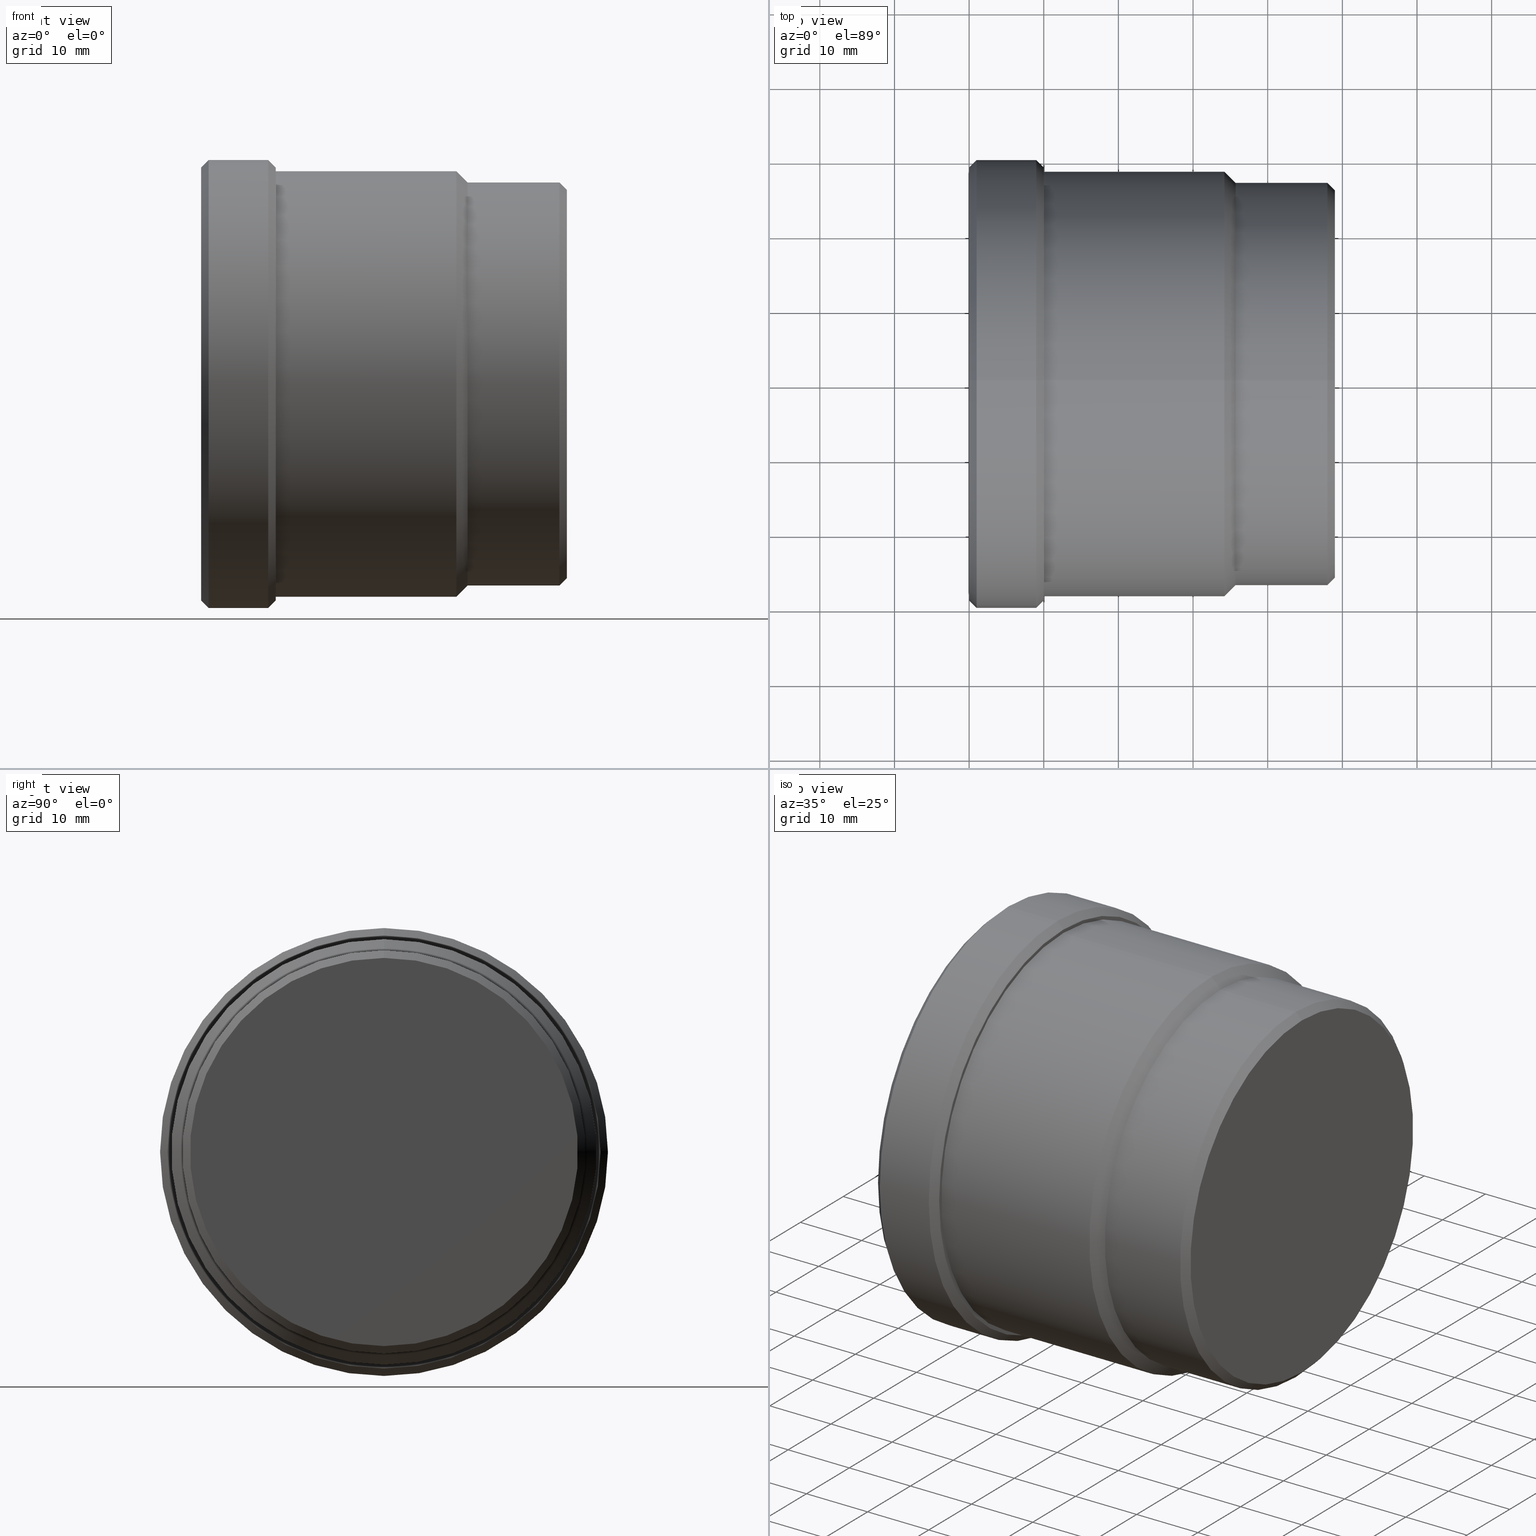
[diagram: canonical four-view strip — front | top / right | iso, engineering-drawing reading convention]
A machine part, canonical four-view strip (front | top / right | iso — engineering-drawing reading convention). The complete STEP part file that produces these views, byte-faithful:
ISO-10303-21;
HEADER;
FILE_DESCRIPTION (( 'STEP AP214' ),
    '1' );
FILE_NAME ('691009-1.STEP',
    '2025-06-18T07:45:58',
    ( '' ),
    ( '' ),
    'SwSTEP 2.0',
    'SolidWorks 2020',
    '' );
FILE_SCHEMA (( 'AUTOMOTIVE_DESIGN' ));
ENDSEC;

DATA;
#1 = DIRECTION ( 'NONE',  ( 0.000000000000000000, 0.000000000000000000, 1.000000000000000000 ) ) ;
#2 = EDGE_LOOP ( 'NONE', ( #45, #367, #122, #79 ) ) ;
#3 = ADVANCED_FACE ( 'NONE', ( #464, #392 ), #241, .F. ) ;
#4 = CARTESIAN_POINT ( 'NONE',  ( 0.000000000000000000, 0.000000000000000000, 0.000000000000000000 ) ) ;
#5 = DIRECTION ( 'NONE',  ( -1.000000000000000000, -0.000000000000000000, -0.000000000000000000 ) ) ;
#6 = AXIS2_PLACEMENT_3D ( 'NONE', #470, #50, #146 ) ;
#7 = CARTESIAN_POINT ( 'NONE',  ( -255.8344310284800258, 0.000000000000000000, 0.000000000000000000 ) ) ;
#8 = EDGE_LOOP ( 'NONE', ( #404, #63, #395, #17 ) ) ;
#9 = DIRECTION ( 'NONE',  ( -1.000000000000000000, -0.000000000000000000, -0.000000000000000000 ) ) ;
#10 = DIRECTION ( 'NONE',  ( 1.000000000000000000, 0.000000000000000000, 0.000000000000000000 ) ) ;
#11 = ADVANCED_FACE ( 'NONE', ( #139 ), #387, .T. ) ;
#12 = EDGE_LOOP ( 'NONE', ( #61, #316 ) ) ;
#13 = FACE_OUTER_BOUND ( 'NONE', #346, .T. ) ;
#14 = ORIENTED_EDGE ( 'NONE', *, *, #199, .F. ) ;
#15 = CIRCLE ( 'NONE', #273, 29.00000000000002132 ) ;
#16 = AXIS2_PLACEMENT_3D ( 'NONE', #378, #339, #145 ) ;
#17 = ORIENTED_EDGE ( 'NONE', *, *, #43, .F. ) ;
#18 = ORIENTED_EDGE ( 'NONE', *, *, #334, .F. ) ;
#19 = CARTESIAN_POINT ( 'NONE',  ( 34.20000000000000995, 0.000000000000000000, 0.000000000000000000 ) ) ;
#20 = CARTESIAN_POINT ( 'NONE',  ( 34.20000000000000995, 0.000000000000000000, 0.000000000000000000 ) ) ;
#21 = ADVANCED_FACE ( 'NONE', ( #311 ), #279, .T. ) ;
#22 = ORIENTED_EDGE ( 'NONE', *, *, #118, .F. ) ;
#23 =( NAMED_UNIT ( * ) SI_UNIT ( $, .STERADIAN. ) SOLID_ANGLE_UNIT ( ) );
#24 = LINE ( 'NONE', #27, #195 ) ;
#25 = VECTOR ( 'NONE', #217, 1000.000000000000000 ) ;
#26 = DIRECTION ( 'NONE',  ( 1.000000000000000000, 0.000000000000000000, 0.000000000000000000 ) ) ;
#27 = CARTESIAN_POINT ( 'NONE',  ( 9.000000000000063949, 3.673940397442059178E-15, -30.00000000000000000 ) ) ;
#28 = CARTESIAN_POINT ( 'NONE',  ( 0.000000000000000000, 3.612708057484693181E-15, 29.00000000000002132 ) ) ;
#29 = ADVANCED_FACE ( 'NONE', ( #352 ), #264, .T. ) ;
#30 = CARTESIAN_POINT ( 'NONE',  ( 9.000000000000063949, 0.000000000000000000, 0.000000000000000000 ) ) ;
#31 = EDGE_LOOP ( 'NONE', ( #461, #402, #275, #114 ) ) ;
#32 = CIRCLE ( 'NONE', #16, 29.00000000000005329 ) ;
#33 = COLOUR_RGB ( '',1.000000000000000000, 1.000000000000000000, 1.000000000000000000 ) ;
#34 = DIRECTION ( 'NONE',  ( -0.7071067811865352493, 0.000000000000000000, 0.7071067811865597852 ) ) ;
#35 = ADVANCED_FACE ( 'NONE', ( #359 ), #36, .F. ) ;
#36 = PLANE ( 'NONE',  #212 ) ;
#37 = ORIENTED_EDGE ( 'NONE', *, *, #390, .T. ) ;
#38 = CARTESIAN_POINT ( 'NONE',  ( 10.00000000000000888, 0.000000000000000000, 0.000000000000000000 ) ) ;
#39 = DIRECTION ( 'NONE',  ( 0.000000000000000000, 0.000000000000000000, 1.000000000000000000 ) ) ;
#40 = VECTOR ( 'NONE', #44, 1000.000000000000000 ) ;
#41 = MECHANICAL_DESIGN_GEOMETRIC_PRESENTATION_REPRESENTATION (  '', ( #462 ), #204 ) ;
#42 = DIRECTION ( 'NONE',  ( 0.000000000000000000, 0.000000000000000000, 1.000000000000000000 ) ) ;
#43 = EDGE_CURVE ( 'NONE', #374, #148, #391, .T. ) ;
#44 = DIRECTION ( 'NONE',  ( -1.000000000000000000, -0.000000000000000000, -0.000000000000000000 ) ) ;
#45 = ORIENTED_EDGE ( 'NONE', *, *, #439, .T. ) ;
#46 = DIRECTION ( 'NONE',  ( 1.000000000000000000, 0.000000000000000000, 0.000000000000000000 ) ) ;
#47 = VERTEX_POINT ( 'NONE', #459 ) ;
#48 = EDGE_LOOP ( 'NONE', ( #125, #276, #223, #457 ) ) ;
#49 = LINE ( 'NONE', #149, #363 ) ;
#50 = DIRECTION ( 'NONE',  ( 1.000000000000000000, 0.000000000000000000, 0.000000000000000000 ) ) ;
#51 = CARTESIAN_POINT ( 'NONE',  ( -255.8344310284800258, 0.000000000000000000, 0.000000000000000000 ) ) ;
#52 = EDGE_CURVE ( 'NONE', #424, #452, #155, .T. ) ;
#53 = ORIENTED_EDGE ( 'NONE', *, *, #460, .F. ) ;
#54 = ORIENTED_EDGE ( 'NONE', *, *, #199, .T. ) ;
#55 = VERTEX_POINT ( 'NONE', #315 ) ;
#56 = DIRECTION ( 'NONE',  ( 0.000000000000000000, 0.000000000000000000, 1.000000000000000000 ) ) ;
#57 = LINE ( 'NONE', #229, #350 ) ;
#58 = CLOSED_SHELL ( 'NONE', ( #67, #433, #29, #91, #124, #192, #107, #277, #11, #3, #410, #147, #35, #224, #425, #87, #21 ) ) ;
#59 = AXIS2_PLACEMENT_3D ( 'NONE', #51, #83, #226 ) ;
#60 = VERTEX_POINT ( 'NONE', #313 ) ;
#61 = ORIENTED_EDGE ( 'NONE', *, *, #383, .T. ) ;
#62 = PRODUCT_CONTEXT ( 'NONE', #440, 'mechanical' ) ;
#63 = ORIENTED_EDGE ( 'NONE', *, *, #414, .T. ) ;
#64 = FILL_AREA_STYLE ('',( #456 ) ) ;
#65 = AXIS2_PLACEMENT_3D ( 'NONE', #309, #384, #207 ) ;
#66 = AXIS2_PLACEMENT_3D ( 'NONE', #386, #382, #310 ) ;
#67 = ADVANCED_FACE ( 'NONE', ( #283 ), #285, .T. ) ;
#68 = CARTESIAN_POINT ( 'NONE',  ( 0.000000000000000000, 0.000000000000000000, 0.000000000000000000 ) ) ;
#69 = DIRECTION ( 'NONE',  ( 1.000000000000000000, 0.000000000000000000, 0.000000000000000000 ) ) ;
#70 = DIRECTION ( 'NONE',  ( -1.000000000000000000, -0.000000000000000000, -0.000000000000000000 ) ) ;
#71 = DIRECTION ( 'NONE',  ( 0.000000000000000000, 0.000000000000000000, 1.000000000000000000 ) ) ;
#72 = CIRCLE ( 'NONE', #243, 28.50000000000000000 ) ;
#73 = EDGE_CURVE ( 'NONE', #452, #47, #281, .T. ) ;
#74 = CARTESIAN_POINT ( 'NONE',  ( 10.00000000000000000, 30.00000000000000000, 0.000000000000000000 ) ) ;
#75 = VERTEX_POINT ( 'NONE', #28 ) ;
#76 = LINE ( 'NONE', #365, #40 ) ;
#77 = PRODUCT_DEFINITION_CONTEXT ( 'detailed design', #466, 'design' ) ;
#78 = CARTESIAN_POINT ( 'NONE',  ( -255.8344310284800258, 0.000000000000000000, 28.50000000000000000 ) ) ;
#79 = ORIENTED_EDGE ( 'NONE', *, *, #393, .F. ) ;
#80 = AXIS2_PLACEMENT_3D ( 'NONE', #19, #160, #332 ) ;
#81 = DIRECTION ( 'NONE',  ( -1.000000000000000000, -0.000000000000000000, -0.000000000000000000 ) ) ;
#82 = CARTESIAN_POINT ( 'NONE',  ( 10.00000000000000000, 0.000000000000000000, 29.00000000000005329 ) ) ;
#83 = DIRECTION ( 'NONE',  ( -1.000000000000000000, -0.000000000000000000, -0.000000000000000000 ) ) ;
#84 = DIRECTION ( 'NONE',  ( -1.000000000000000000, -0.000000000000000000, -0.000000000000000000 ) ) ;
#85 = AXIS2_PLACEMENT_3D ( 'NONE', #294, #182, #288 ) ;
#86 = FACE_OUTER_BOUND ( 'NONE', #265, .T. ) ;
#87 = ADVANCED_FACE ( 'NONE', ( #426 ), #166, .T. ) ;
#88 = CARTESIAN_POINT ( 'NONE',  ( 47.99999999999998579, 0.000000000000000000, 0.000000000000000000 ) ) ;
#89 = LINE ( 'NONE', #416, #25 ) ;
#90 = ORIENTED_EDGE ( 'NONE', *, *, #251, .F. ) ;
#91 = ADVANCED_FACE ( 'NONE', ( #467 ), #356, .T. ) ;
#92 = VERTEX_POINT ( 'NONE', #137 ) ;
#93 = DIRECTION ( 'NONE',  ( -0.7071067811865439090, 8.659560562354978464E-17, -0.7071067811865512365 ) ) ;
#94 = ORIENTED_EDGE ( 'NONE', *, *, #455, .F. ) ;
#95 = CARTESIAN_POINT ( 'NONE',  ( 35.70000000000000995, 3.306546357697854128E-15, -27.00000000000000355 ) ) ;
#96 = DIRECTION ( 'NONE',  ( -1.000000000000000000, -0.000000000000000000, -0.000000000000000000 ) ) ;
#97 = VECTOR ( 'NONE', #34, 1000.000000000000000 ) ;
#98 = DIRECTION ( 'NONE',  ( 0.000000000000000000, 0.000000000000000000, 1.000000000000000000 ) ) ;
#99 = DIRECTION ( 'NONE',  ( -1.000000000000000000, -0.000000000000000000, -0.000000000000000000 ) ) ;
#100 = DIRECTION ( 'NONE',  ( 0.000000000000000000, 0.000000000000000000, -1.000000000000000000 ) ) ;
#101 = SURFACE_STYLE_USAGE ( .BOTH. , #427 ) ;
#102 = ORIENTED_EDGE ( 'NONE', *, *, #383, .F. ) ;
#103 = DIRECTION ( 'NONE',  ( -0.000000000000000000, 0.000000000000000000, 1.000000000000000000 ) ) ;
#104 = AXIS2_PLACEMENT_3D ( 'NONE', #333, #10, #42 ) ;
#105 = ORIENTED_EDGE ( 'NONE', *, *, #230, .F. ) ;
#106 = CARTESIAN_POINT ( 'NONE',  ( 34.20000000000000995, 0.000000000000000000, 0.000000000000000000 ) ) ;
#107 = ADVANCED_FACE ( 'NONE', ( #132 ), #355, .T. ) ;
#108 = DIRECTION ( 'NONE',  ( -1.000000000000000000, -0.000000000000000000, -0.000000000000000000 ) ) ;
#109 = ORIENTED_EDGE ( 'NONE', *, *, #308, .T. ) ;
#110 = FACE_OUTER_BOUND ( 'NONE', #209, .T. ) ;
#111 = AXIS2_PLACEMENT_3D ( 'NONE', #38, #9, #328 ) ;
#112 = AXIS2_PLACEMENT_3D ( 'NONE', #237, #193, #26 ) ;
#113 = DIRECTION ( 'NONE',  ( 0.000000000000000000, 0.000000000000000000, 1.000000000000000000 ) ) ;
#114 = ORIENTED_EDGE ( 'NONE', *, *, #141, .T. ) ;
#115 = FACE_OUTER_BOUND ( 'NONE', #314, .T. ) ;
#116 = DIRECTION ( 'NONE',  ( -1.000000000000000000, -0.000000000000000000, -0.000000000000000000 ) ) ;
#117 = ORIENTED_EDGE ( 'NONE', *, *, #141, .F. ) ;
#118 = EDGE_CURVE ( 'NONE', #55, #468, #219, .T. ) ;
#119 = CARTESIAN_POINT ( 'NONE',  ( 34.20000000000000995, 0.000000000000000000, 28.50000000000000000 ) ) ;
#120 = DIRECTION ( 'NONE',  ( -1.000000000000000000, -0.000000000000000000, -0.000000000000000000 ) ) ;
#121 = CIRCLE ( 'NONE', #299, 25.99999999999995381 ) ;
#122 = ORIENTED_EDGE ( 'NONE', *, *, #52, .F. ) ;
#123 = CARTESIAN_POINT ( 'NONE',  ( 0.000000000000000000, 0.000000000000000000, -29.00000000000002132 ) ) ;
#124 = ADVANCED_FACE ( 'NONE', ( #401 ), #188, .T. ) ;
#125 = ORIENTED_EDGE ( 'NONE', *, *, #73, .F. ) ;
#126 = CARTESIAN_POINT ( 'NONE',  ( 9.000000000000063949, 0.000000000000000000, 30.00000000000000000 ) ) ;
#127 = AXIS2_PLACEMENT_3D ( 'NONE', #330, #268, #187 ) ;
#128 =( LENGTH_UNIT ( ) NAMED_UNIT ( * ) SI_UNIT ( .MILLI., .METRE. ) );
#129 = ORIENTED_EDGE ( 'NONE', *, *, #308, .F. ) ;
#130 = APPLICATION_PROTOCOL_DEFINITION ( 'draft international standard', 'automotive_design', 1998, #466 ) ;
#131 = EDGE_CURVE ( 'NONE', #184, #300, #329, .T. ) ;
#132 = FACE_OUTER_BOUND ( 'NONE', #409, .T. ) ;
#133 = CIRCLE ( 'NONE', #266, 28.50000000000000000 ) ;
#134 = DIRECTION ( 'NONE',  ( -0.000000000000000000, 0.000000000000000000, 1.000000000000000000 ) ) ;
#135 = EDGE_CURVE ( 'NONE', #248, #60, #398, .T. ) ;
#136 = DIRECTION ( 'NONE',  ( -1.000000000000000000, 0.000000000000000000, -0.000000000000000000 ) ) ;
#137 = CARTESIAN_POINT ( 'NONE',  ( 10.00000000000000888, 3.490243377569956456E-15, -28.50000000000000000 ) ) ;
#138 = CIRCLE ( 'NONE', #104, 25.99999999999995381 ) ;
#139 = FACE_OUTER_BOUND ( 'NONE', #31, .T. ) ;
#140 = CONICAL_SURFACE ( 'NONE', #342, 30.00000000000000000, 0.7853981633974533860 ) ;
#141 = EDGE_CURVE ( 'NONE', #60, #248, #340, .T. ) ;
#142 = DIRECTION ( 'NONE',  ( -1.000000000000000000, -0.000000000000000000, -0.000000000000000000 ) ) ;
#143 = DIRECTION ( 'NONE',  ( 0.000000000000000000, 0.000000000000000000, -1.000000000000000000 ) ) ;
#144 = CARTESIAN_POINT ( 'NONE',  ( 47.99999999999998579, 0.000000000000000000, 27.00000000000000355 ) ) ;
#145 = DIRECTION ( 'NONE',  ( 0.000000000000000000, 0.000000000000000000, 1.000000000000000000 ) ) ;
#146 = DIRECTION ( 'NONE',  ( 0.000000000000000000, 0.000000000000000000, -1.000000000000000000 ) ) ;
#147 = ADVANCED_FACE ( 'NONE', ( #258 ), #396, .T. ) ;
#148 = VERTEX_POINT ( 'NONE', #144 ) ;
#149 = CARTESIAN_POINT ( 'NONE',  ( 47.99999999999998579, 3.306546357697854128E-15, -27.00000000000000355 ) ) ;
#150 = ORIENTED_EDGE ( 'NONE', *, *, #357, .F. ) ;
#151 = ORIENTED_EDGE ( 'NONE', *, *, #135, .T. ) ;
#152 = ORIENTED_EDGE ( 'NONE', *, *, #168, .T. ) ;
#153 = CARTESIAN_POINT ( 'NONE',  ( 9.000000000000063949, 0.000000000000000000, 0.000000000000000000 ) ) ;
#154 = ORIENTED_EDGE ( 'NONE', *, *, #393, .T. ) ;
#155 = CIRCLE ( 'NONE', #312, 27.00000000000000355 ) ;
#156 = DIRECTION ( 'NONE',  ( 0.000000000000000000, 0.000000000000000000, -1.000000000000000000 ) ) ;
#157 = VECTOR ( 'NONE', #411, 1000.000000000000000 ) ;
#158 = EDGE_CURVE ( 'NONE', #374, #257, #138, .T. ) ;
#159 = EDGE_LOOP ( 'NONE', ( #408, #236, #129, #232 ) ) ;
#160 = DIRECTION ( 'NONE',  ( -1.000000000000000000, -0.000000000000000000, -0.000000000000000000 ) ) ;
#161 = PRODUCT_DEFINITION ( 'δ֪', '', #306, #77 ) ;
#162 = DIRECTION ( 'NONE',  ( 0.000000000000000000, 0.000000000000000000, 1.000000000000000000 ) ) ;
#163 = ORIENTED_EDGE ( 'NONE', *, *, #158, .F. ) ;
#164 = APPLICATION_PROTOCOL_DEFINITION ( 'draft international standard', 'automotive_design', 1998, #440 ) ;
#165 = AXIS2_PLACEMENT_3D ( 'NONE', #428, #245, #71 ) ;
#166 = CONICAL_SURFACE ( 'NONE', #291, 30.00000000000000000, 0.7853981633974533860 ) ;
#167 = ORIENTED_EDGE ( 'NONE', *, *, #208, .F. ) ;
#168 = EDGE_CURVE ( 'NONE', #75, #326, #15, .T. ) ;
#169 = FILL_AREA_STYLE ('',( #274 ) ) ;
#170 = DIRECTION ( 'NONE',  ( -1.000000000000000000, -0.000000000000000000, -0.000000000000000000 ) ) ;
#171 = SURFACE_STYLE_FILL_AREA ( #64 ) ;
#172 = AXIS2_PLACEMENT_3D ( 'NONE', #7, #108, #407 ) ;
#173 = CARTESIAN_POINT ( 'NONE',  ( -255.8344310284800258, 0.000000000000000000, 0.000000000000000000 ) ) ;
#174 = MECHANICAL_DESIGN_GEOMETRIC_PRESENTATION_REPRESENTATION (  '', ( #181 ), #370 ) ;
#175 = CARTESIAN_POINT ( 'NONE',  ( 35.70000000000000995, 0.000000000000000000, 0.000000000000000000 ) ) ;
#176 = CARTESIAN_POINT ( 'NONE',  ( 49.00000000000000000, 27.00000000000000000, 0.000000000000000000 ) ) ;
#177 = ORIENTED_EDGE ( 'NONE', *, *, #218, .F. ) ;
#178 = AXIS2_PLACEMENT_3D ( 'NONE', #106, #84, #113 ) ;
#179 = CARTESIAN_POINT ( 'NONE',  ( 49.00000000000000000, 3.245314017740483398E-15, -25.99999999999995381 ) ) ;
#180 = PRESENTATION_LAYER_ASSIGNMENT (  '', '', ( #462 ) ) ;
#181 = STYLED_ITEM ( 'NONE', ( #247 ), #261 ) ;
#182 = DIRECTION ( 'NONE',  ( -1.000000000000000000, -0.000000000000000000, -0.000000000000000000 ) ) ;
#183 = CARTESIAN_POINT ( 'NONE',  ( 47.99999999999998579, 3.306546357697854128E-15, -27.00000000000000355 ) ) ;
#184 = VERTEX_POINT ( 'NONE', #82 ) ;
#185 = FACE_OUTER_BOUND ( 'NONE', #298, .T. ) ;
#186 = CIRCLE ( 'NONE', #220, 30.00000000000000000 ) ;
#187 = DIRECTION ( 'NONE',  ( 0.000000000000000000, 0.000000000000000000, -1.000000000000000000 ) ) ;
#188 = CYLINDRICAL_SURFACE ( 'NONE', #85, 27.00000000000000355 ) ;
#189 = ORIENTED_EDGE ( 'NONE', *, *, #414, .F. ) ;
#190 = DIRECTION ( 'NONE',  ( 0.000000000000000000, 0.000000000000000000, -1.000000000000000000 ) ) ;
#191 = ORIENTED_EDGE ( 'NONE', *, *, #284, .T. ) ;
#192 = ADVANCED_FACE ( 'NONE', ( #110 ), #438, .T. ) ;
#193 = DIRECTION ( 'NONE',  ( 0.000000000000000000, 0.000000000000000000, 1.000000000000000000 ) ) ;
#194 = CIRCLE ( 'NONE', #437, 29.00000000000002132 ) ;
#195 = VECTOR ( 'NONE', #93, 1000.000000000000000 ) ;
#196 = ORIENTED_EDGE ( 'NONE', *, *, #135, .F. ) ;
#197 = ORIENTED_EDGE ( 'NONE', *, *, #131, .F. ) ;
#198 =( NAMED_UNIT ( * ) SI_UNIT ( $, .STERADIAN. ) SOLID_ANGLE_UNIT ( ) );
#199 = EDGE_CURVE ( 'NONE', #373, #379, #349, .T. ) ;
#200 = ORIENTED_EDGE ( 'NONE', *, *, #334, .T. ) ;
#201 =( LENGTH_UNIT ( ) NAMED_UNIT ( * ) SI_UNIT ( .MILLI., .METRE. ) );
#202 = CARTESIAN_POINT ( 'NONE',  ( 10.00000000000000888, 0.000000000000000000, 28.50000000000000000 ) ) ;
#203 = AXIS2_PLACEMENT_3D ( 'NONE', #214, #358, #98 ) ;
#204 =( GEOMETRIC_REPRESENTATION_CONTEXT ( 3 ) GLOBAL_UNCERTAINTY_ASSIGNED_CONTEXT ( ( #399 ) ) GLOBAL_UNIT_ASSIGNED_CONTEXT ( ( #128, #305, #353 ) ) REPRESENTATION_CONTEXT ( 'NONE', 'WORKASPACE' ) );
#205 = CARTESIAN_POINT ( 'NONE',  ( 34.20000000000000995, 3.490243377569956456E-15, -28.50000000000000000 ) ) ;
#206 = SURFACE_STYLE_USAGE ( .BOTH. , #347 ) ;
#207 = DIRECTION ( 'NONE',  ( 0.000000000000000000, 0.000000000000000000, 1.000000000000000000 ) ) ;
#208 = EDGE_CURVE ( 'NONE', #271, #452, #320, .T. ) ;
#209 = EDGE_LOOP ( 'NONE', ( #109, #191, #102, #22 ) ) ;
#210 = DIRECTION ( 'NONE',  ( 0.000000000000000000, 0.000000000000000000, 1.000000000000000000 ) ) ;
#211 = SURFACE_STYLE_FILL_AREA ( #169 ) ;
#212 = AXIS2_PLACEMENT_3D ( 'NONE', #176, #249, #103 ) ;
#213 = ORIENTED_EDGE ( 'NONE', *, *, #405, .F. ) ;
#214 = CARTESIAN_POINT ( 'NONE',  ( -255.8344310284800258, 0.000000000000000000, 0.000000000000000000 ) ) ;
#215 = ORIENTED_EDGE ( 'NONE', *, *, #448, .T. ) ;
#216 = UNCERTAINTY_MEASURE_WITH_UNIT (LENGTH_MEASURE( 1.000000000000000082E-05 ), #201, 'distance_accuracy_value', 'NONE');
#217 = DIRECTION ( 'NONE',  ( -0.7071067811865439090, 0.000000000000000000, 0.7071067811865512365 ) ) ;
#218 = EDGE_CURVE ( 'NONE', #379, #373, #186, .T. ) ;
#219 = LINE ( 'NONE', #78, #431 ) ;
#220 = AXIS2_PLACEMENT_3D ( 'NONE', #262, #227, #292 ) ;
#221 = AXIS2_PLACEMENT_3D ( 'NONE', #88, #293, #442 ) ;
#222 = CARTESIAN_POINT ( 'NONE',  ( 1.000000000000000888, 3.673940397442059178E-15, -30.00000000000000000 ) ) ;
#223 = ORIENTED_EDGE ( 'NONE', *, *, #418, .T. ) ;
#224 = ADVANCED_FACE ( 'NONE', ( #443 ), #385, .T. ) ;
#225 = DIRECTION ( 'NONE',  ( 0.000000000000000000, 0.000000000000000000, -1.000000000000000000 ) ) ;
#226 = DIRECTION ( 'NONE',  ( 0.000000000000000000, 0.000000000000000000, 1.000000000000000000 ) ) ;
#227 = DIRECTION ( 'NONE',  ( -1.000000000000000000, -0.000000000000000000, -0.000000000000000000 ) ) ;
#228 = AXIS2_PLACEMENT_3D ( 'NONE', #322, #324, #1 ) ;
#229 = CARTESIAN_POINT ( 'NONE',  ( -255.8344310284800258, 0.000000000000000000, 27.00000000000000355 ) ) ;
#230 = EDGE_CURVE ( 'NONE', #92, #468, #72, .T. ) ;
#231 = CARTESIAN_POINT ( 'NONE',  ( 35.70000000000000995, 0.000000000000000000, 27.00000000000000355 ) ) ;
#232 = ORIENTED_EDGE ( 'NONE', *, *, #418, .F. ) ;
#233 = DIRECTION ( 'NONE',  ( 0.000000000000000000, 0.000000000000000000, 1.000000000000000000 ) ) ;
#234 = EDGE_LOOP ( 'NONE', ( #189, #163, #250, #213 ) ) ;
#235 = VECTOR ( 'NONE', #260, 1000.000000000000000 ) ;
#236 = ORIENTED_EDGE ( 'NONE', *, *, #73, .T. ) ;
#237 = CARTESIAN_POINT ( 'NONE',  ( 0.000000000000000000, 0.000000000000000000, 0.000000000000000000 ) ) ;
#238 = PRESENTATION_STYLE_ASSIGNMENT (( #206 ) ) ;
#239 = EDGE_CURVE ( 'NONE', #75, #60, #255, .T. ) ;
#240 =( NAMED_UNIT ( * ) PLANE_ANGLE_UNIT ( ) SI_UNIT ( $, .RADIAN. ) );
#241 = PLANE ( 'NONE',  #454 ) ;
#242 = DIRECTION ( 'NONE',  ( 0.000000000000000000, 0.000000000000000000, 1.000000000000000000 ) ) ;
#243 = AXIS2_PLACEMENT_3D ( 'NONE', #436, #432, #39 ) ;
#244 = AXIS2_PLACEMENT_3D ( 'NONE', #388, #345, #242 ) ;
#245 = DIRECTION ( 'NONE',  ( -1.000000000000000000, -0.000000000000000000, -0.000000000000000000 ) ) ;
#246 = DIRECTION ( 'NONE',  ( 0.000000000000000000, 0.000000000000000000, 1.000000000000000000 ) ) ;
#247 = PRESENTATION_STYLE_ASSIGNMENT (( #101 ) ) ;
#248 = VERTEX_POINT ( 'NONE', #222 ) ;
#249 = DIRECTION ( 'NONE',  ( -1.000000000000000000, 0.000000000000000000, -0.000000000000000000 ) ) ;
#250 = ORIENTED_EDGE ( 'NONE', *, *, #43, .T. ) ;
#251 = EDGE_CURVE ( 'NONE', #373, #60, #76, .T. ) ;
#252 = CARTESIAN_POINT ( 'NONE',  ( 10.00000000000000000, 0.000000000000000000, 0.000000000000000000 ) ) ;
#253 = CARTESIAN_POINT ( 'NONE',  ( -255.8344310284800258, 3.306546357697854128E-15, -27.00000000000000355 ) ) ;
#254 = VECTOR ( 'NONE', #429, 1000.000000000000000 ) ;
#255 = LINE ( 'NONE', #394, #449 ) ;
#256 = CIRCLE ( 'NONE', #111, 28.50000000000000000 ) ;
#257 = VERTEX_POINT ( 'NONE', #179 ) ;
#258 = FACE_OUTER_BOUND ( 'NONE', #375, .T. ) ;
#259 = PRODUCT_RELATED_PRODUCT_CATEGORY ( 'part', '', ( #325 ) ) ;
#260 = DIRECTION ( 'NONE',  ( 0.7071067811865561215, 0.000000000000000000, -0.7071067811865389130 ) ) ;
#261 = ADVANCED_BREP_SHAPE_REPRESENTATION ( '691009-1', ( #445, #112 ), #463 ) ;
#262 = CARTESIAN_POINT ( 'NONE',  ( 9.000000000000063949, 0.000000000000000000, 0.000000000000000000 ) ) ;
#263 = LINE ( 'NONE', #123, #235 ) ;
#264 = CONICAL_SURFACE ( 'NONE', #368, 29.00000000000002132, 0.7853981633974361776 ) ;
#265 = EDGE_LOOP ( 'NONE', ( #446, #341, #200, #117 ) ) ;
#266 = AXIS2_PLACEMENT_3D ( 'NONE', #20, #99, #162 ) ;
#267 = PRESENTATION_LAYER_ASSIGNMENT (  '', '', ( #181 ) ) ;
#268 = DIRECTION ( 'NONE',  ( 1.000000000000000000, 0.000000000000000000, 0.000000000000000000 ) ) ;
#269 = EDGE_LOOP ( 'NONE', ( #335, #348 ) ) ;
#270 = CARTESIAN_POINT ( 'NONE',  ( 49.00000000000000000, 0.000000000000000000, 0.000000000000000000 ) ) ;
#271 = VERTEX_POINT ( 'NONE', #183 ) ;
#272 = CARTESIAN_POINT ( 'NONE',  ( 49.00000000000000000, 0.000000000000000000, 25.99999999999995381 ) ) ;
#273 = AXIS2_PLACEMENT_3D ( 'NONE', #4, #81, #225 ) ;
#274 = FILL_AREA_STYLE_COLOUR ( '', #33 ) ;
#275 = ORIENTED_EDGE ( 'NONE', *, *, #251, .T. ) ;
#276 = ORIENTED_EDGE ( 'NONE', *, *, #460, .T. ) ;
#277 = ADVANCED_FACE ( 'NONE', ( #185 ), #366, .F. ) ;
#278 = DIRECTION ( 'NONE',  ( -1.000000000000000000, -0.000000000000000000, -0.000000000000000000 ) ) ;
#279 = CONICAL_SURFACE ( 'NONE', #165, 27.00000000000000355, 0.7853981633974657095 ) ;
#280 = CIRCLE ( 'NONE', #221, 27.00000000000000355 ) ;
#281 = LINE ( 'NONE', #205, #254 ) ;
#282 = EDGE_LOOP ( 'NONE', ( #441, #465, #196, #18 ) ) ;
#283 = FACE_OUTER_BOUND ( 'NONE', #8, .T. ) ;
#284 = EDGE_CURVE ( 'NONE', #47, #92, #415, .T. ) ;
#285 = CONICAL_SURFACE ( 'NONE', #65, 27.00000000000000355, 0.7853981633974657095 ) ;
#286 = CONICAL_SURFACE ( 'NONE', #422, 29.00000000000002132, 0.7853981633974361776 ) ;
#287 = DIRECTION ( 'NONE',  ( 0.000000000000000000, 0.000000000000000000, 1.000000000000000000 ) ) ;
#288 = DIRECTION ( 'NONE',  ( 0.000000000000000000, 0.000000000000000000, 1.000000000000000000 ) ) ;
#289 = DIRECTION ( 'NONE',  ( -1.000000000000000000, -0.000000000000000000, -0.000000000000000000 ) ) ;
#290 = PRODUCT_DEFINITION_SHAPE ( 'NONE', 'NONE',  #161 ) ;
#291 = AXIS2_PLACEMENT_3D ( 'NONE', #30, #170, #246 ) ;
#292 = DIRECTION ( 'NONE',  ( 0.000000000000000000, 0.000000000000000000, 1.000000000000000000 ) ) ;
#293 = DIRECTION ( 'NONE',  ( -1.000000000000000000, -0.000000000000000000, -0.000000000000000000 ) ) ;
#294 = CARTESIAN_POINT ( 'NONE',  ( -255.8344310284800258, 0.000000000000000000, 0.000000000000000000 ) ) ;
#295 = DIRECTION ( 'NONE',  ( -0.7071067811865352493, 8.659560562355083235E-17, -0.7071067811865597852 ) ) ;
#296 = DIRECTION ( 'NONE',  ( 1.000000000000000000, 0.000000000000000000, 0.000000000000000000 ) ) ;
#297 = AXIS2_PLACEMENT_3D ( 'NONE', #252, #46, #369 ) ;
#298 = EDGE_LOOP ( 'NONE', ( #331, #152 ) ) ;
#299 = AXIS2_PLACEMENT_3D ( 'NONE', #270, #444, #233 ) ;
#300 = VERTEX_POINT ( 'NONE', #453 ) ;
#301 = CARTESIAN_POINT ( 'NONE',  ( -255.8344310284800258, 3.490243377569956456E-15, -28.50000000000000000 ) ) ;
#302 = EDGE_LOOP ( 'NONE', ( #94, #197, #381, #177 ) ) ;
#303 = CARTESIAN_POINT ( 'NONE',  ( -255.8344310284800258, 3.673940397442059178E-15, -30.00000000000000000 ) ) ;
#304 = AXIS2_PLACEMENT_3D ( 'NONE', #364, #434, #143 ) ;
#305 =( NAMED_UNIT ( * ) PLANE_ANGLE_UNIT ( ) SI_UNIT ( $, .RADIAN. ) );
#306 = PRODUCT_DEFINITION_FORMATION_WITH_SPECIFIED_SOURCE ( '�κ�', '', #325, .NOT_KNOWN. ) ;
#307 =( NAMED_UNIT ( * ) PLANE_ANGLE_UNIT ( ) SI_UNIT ( $, .RADIAN. ) );
#308 = EDGE_CURVE ( 'NONE', #55, #47, #421, .T. ) ;
#309 = CARTESIAN_POINT ( 'NONE',  ( 47.99999999999998579, 0.000000000000000000, 0.000000000000000000 ) ) ;
#310 = DIRECTION ( 'NONE',  ( 0.000000000000000000, 0.000000000000000000, 1.000000000000000000 ) ) ;
#311 = FACE_OUTER_BOUND ( 'NONE', #234, .T. ) ;
#312 = AXIS2_PLACEMENT_3D ( 'NONE', #175, #96, #354 ) ;
#313 = CARTESIAN_POINT ( 'NONE',  ( 1.000000000000000888, 0.000000000000000000, 30.00000000000000000 ) ) ;
#314 = EDGE_LOOP ( 'NONE', ( #372, #215, #397, #105 ) ) ;
#315 = CARTESIAN_POINT ( 'NONE',  ( 34.20000000000000995, 0.000000000000000000, 28.50000000000000000 ) ) ;
#316 = ORIENTED_EDGE ( 'NONE', *, *, #230, .T. ) ;
#317 = VECTOR ( 'NONE', #116, 1000.000000000000000 ) ;
#318 = UNCERTAINTY_MEASURE_WITH_UNIT (LENGTH_MEASURE( 1.000000000000000082E-05 ), #458, 'distance_accuracy_value', 'NONE');
#319 = VECTOR ( 'NONE', #351, 1000.000000000000000 ) ;
#320 = LINE ( 'NONE', #253, #317 ) ;
#321 = EDGE_CURVE ( 'NONE', #326, #75, #194, .T. ) ;
#322 = CARTESIAN_POINT ( 'NONE',  ( -255.8344310284800258, 0.000000000000000000, 0.000000000000000000 ) ) ;
#323 = ORIENTED_EDGE ( 'NONE', *, *, #405, .T. ) ;
#324 = DIRECTION ( 'NONE',  ( -1.000000000000000000, -0.000000000000000000, -0.000000000000000000 ) ) ;
#325 = PRODUCT ( '691009-1', '691009-1', '', ( #62 ) ) ;
#326 = VERTEX_POINT ( 'NONE', #451 ) ;
#327 = ORIENTED_EDGE ( 'NONE', *, *, #469, .T. ) ;
#328 = DIRECTION ( 'NONE',  ( 0.000000000000000000, 0.000000000000000000, 1.000000000000000000 ) ) ;
#329 = CIRCLE ( 'NONE', #297, 29.00000000000005329 ) ;
#330 = CARTESIAN_POINT ( 'NONE',  ( 0.000000000000000000, 0.000000000000000000, 0.000000000000000000 ) ) ;
#331 = ORIENTED_EDGE ( 'NONE', *, *, #321, .T. ) ;
#332 = DIRECTION ( 'NONE',  ( 0.000000000000000000, 0.000000000000000000, 1.000000000000000000 ) ) ;
#333 = CARTESIAN_POINT ( 'NONE',  ( 49.00000000000000000, 0.000000000000000000, 0.000000000000000000 ) ) ;
#334 = EDGE_CURVE ( 'NONE', #326, #248, #263, .T. ) ;
#335 = ORIENTED_EDGE ( 'NONE', *, *, #131, .T. ) ;
#336 = DIRECTION ( 'NONE',  ( -1.000000000000000000, -0.000000000000000000, -0.000000000000000000 ) ) ;
#337 = ORIENTED_EDGE ( 'NONE', *, *, #158, .T. ) ;
#338 = ORIENTED_EDGE ( 'NONE', *, *, #455, .T. ) ;
#339 = DIRECTION ( 'NONE',  ( 1.000000000000000000, 0.000000000000000000, 0.000000000000000000 ) ) ;
#340 = CIRCLE ( 'NONE', #304, 30.00000000000000000 ) ;
#341 = ORIENTED_EDGE ( 'NONE', *, *, #321, .F. ) ;
#342 = AXIS2_PLACEMENT_3D ( 'NONE', #153, #120, #56 ) ;
#343 = DIRECTION ( 'NONE',  ( -1.000000000000000000, -0.000000000000000000, -0.000000000000000000 ) ) ;
#344 = ORIENTED_EDGE ( 'NONE', *, *, #376, .F. ) ;
#345 = DIRECTION ( 'NONE',  ( -1.000000000000000000, -0.000000000000000000, -0.000000000000000000 ) ) ;
#346 = EDGE_LOOP ( 'NONE', ( #150, #338, #14, #344 ) ) ;
#347 = SURFACE_SIDE_STYLE ('',( #171 ) ) ;
#348 = ORIENTED_EDGE ( 'NONE', *, *, #357, .T. ) ;
#349 = CIRCLE ( 'NONE', #412, 30.00000000000000000 ) ;
#350 = VECTOR ( 'NONE', #5, 1000.000000000000000 ) ;
#351 = DIRECTION ( 'NONE',  ( -1.000000000000000000, -0.000000000000000000, -0.000000000000000000 ) ) ;
#352 = FACE_OUTER_BOUND ( 'NONE', #282, .T. ) ;
#353 =( NAMED_UNIT ( * ) SI_UNIT ( $, .STERADIAN. ) SOLID_ANGLE_UNIT ( ) );
#354 = DIRECTION ( 'NONE',  ( 0.000000000000000000, 0.000000000000000000, 1.000000000000000000 ) ) ;
#355 = CYLINDRICAL_SURFACE ( 'NONE', #417, 30.00000000000000000 ) ;
#356 = CONICAL_SURFACE ( 'NONE', #430, 28.50000000000000000, 0.7853981633974492782 ) ;
#357 = EDGE_CURVE ( 'NONE', #300, #184, #32, .T. ) ;
#358 = DIRECTION ( 'NONE',  ( -1.000000000000000000, -0.000000000000000000, -0.000000000000000000 ) ) ;
#359 = FACE_OUTER_BOUND ( 'NONE', #435, .T. ) ;
#360 = CARTESIAN_POINT ( 'NONE',  ( 9.000000000000063949, 3.673940397442059178E-15, -30.00000000000000000 ) ) ;
#361 = CARTESIAN_POINT ( 'NONE',  ( 9.000000000000063949, 0.000000000000000000, 0.000000000000000000 ) ) ;
#362 = VECTOR ( 'NONE', #343, 1000.000000000000000 ) ;
#363 = VECTOR ( 'NONE', #295, 1000.000000000000000 ) ;
#364 = CARTESIAN_POINT ( 'NONE',  ( 1.000000000000000888, 0.000000000000000000, 0.000000000000000000 ) ) ;
#365 = CARTESIAN_POINT ( 'NONE',  ( -255.8344310284800258, 0.000000000000000000, 30.00000000000000000 ) ) ;
#366 = PLANE ( 'NONE',  #127 ) ;
#367 = ORIENTED_EDGE ( 'NONE', *, *, #208, .T. ) ;
#368 = AXIS2_PLACEMENT_3D ( 'NONE', #68, #69, #100 ) ;
#369 = DIRECTION ( 'NONE',  ( 0.000000000000000000, 0.000000000000000000, 1.000000000000000000 ) ) ;
#370 =( GEOMETRIC_REPRESENTATION_CONTEXT ( 3 ) GLOBAL_UNCERTAINTY_ASSIGNED_CONTEXT ( ( #216 ) ) GLOBAL_UNIT_ASSIGNED_CONTEXT ( ( #201, #307, #23 ) ) REPRESENTATION_CONTEXT ( 'NONE', 'WORKASPACE' ) );
#371 = CARTESIAN_POINT ( 'NONE',  ( 0.000000000000000000, 0.000000000000000000, 0.000000000000000000 ) ) ;
#372 = ORIENTED_EDGE ( 'NONE', *, *, #284, .F. ) ;
#373 = VERTEX_POINT ( 'NONE', #126 ) ;
#374 = VERTEX_POINT ( 'NONE', #272 ) ;
#375 = EDGE_LOOP ( 'NONE', ( #167, #323, #154, #53 ) ) ;
#376 = EDGE_CURVE ( 'NONE', #184, #373, #89, .T. ) ;
#377 = SHAPE_DEFINITION_REPRESENTATION ( #290, #261 ) ;
#378 = CARTESIAN_POINT ( 'NONE',  ( 10.00000000000000000, 0.000000000000000000, 0.000000000000000000 ) ) ;
#379 = VERTEX_POINT ( 'NONE', #360 ) ;
#380 = CIRCLE ( 'NONE', #66, 27.00000000000000355 ) ;
#381 = ORIENTED_EDGE ( 'NONE', *, *, #376, .T. ) ;
#382 = DIRECTION ( 'NONE',  ( -1.000000000000000000, -0.000000000000000000, -0.000000000000000000 ) ) ;
#383 = EDGE_CURVE ( 'NONE', #468, #92, #256, .T. ) ;
#384 = DIRECTION ( 'NONE',  ( -1.000000000000000000, -0.000000000000000000, -0.000000000000000000 ) ) ;
#385 = CONICAL_SURFACE ( 'NONE', #178, 28.50000000000000000, 0.7853981633974492782 ) ;
#386 = CARTESIAN_POINT ( 'NONE',  ( 35.70000000000000995, 0.000000000000000000, 0.000000000000000000 ) ) ;
#387 = CYLINDRICAL_SURFACE ( 'NONE', #203, 30.00000000000000000 ) ;
#388 = CARTESIAN_POINT ( 'NONE',  ( 47.99999999999998579, 0.000000000000000000, 0.000000000000000000 ) ) ;
#389 = CARTESIAN_POINT ( 'NONE',  ( 34.20000000000000995, 0.000000000000000000, 0.000000000000000000 ) ) ;
#390 = EDGE_CURVE ( 'NONE', #257, #374, #121, .T. ) ;
#391 = LINE ( 'NONE', #419, #97 ) ;
#392 = FACE_BOUND ( 'NONE', #12, .T. ) ;
#393 = EDGE_CURVE ( 'NONE', #148, #424, #57, .T. ) ;
#394 = CARTESIAN_POINT ( 'NONE',  ( 0.000000000000000000, 3.551475717527327185E-15, 29.00000000000002132 ) ) ;
#395 = ORIENTED_EDGE ( 'NONE', *, *, #439, .F. ) ;
#396 = CYLINDRICAL_SURFACE ( 'NONE', #172, 27.00000000000000355 ) ;
#397 = ORIENTED_EDGE ( 'NONE', *, *, #118, .T. ) ;
#398 = CIRCLE ( 'NONE', #6, 30.00000000000000000 ) ;
#399 = UNCERTAINTY_MEASURE_WITH_UNIT (LENGTH_MEASURE( 1.000000000000000082E-05 ), #128, 'distance_accuracy_value', 'NONE');
#400 = COLOUR_RGB ( '',1.000000000000000000, 1.000000000000000000, 1.000000000000000000 ) ;
#401 = FACE_OUTER_BOUND ( 'NONE', #2, .T. ) ;
#402 = ORIENTED_EDGE ( 'NONE', *, *, #218, .T. ) ;
#403 = DIRECTION ( 'NONE',  ( 0.7071067811865561215, 8.659560562354828088E-17, 0.7071067811865389130 ) ) ;
#404 = ORIENTED_EDGE ( 'NONE', *, *, #390, .F. ) ;
#405 = EDGE_CURVE ( 'NONE', #271, #148, #280, .T. ) ;
#406 = CYLINDRICAL_SURFACE ( 'NONE', #59, 28.50000000000000000 ) ;
#407 = DIRECTION ( 'NONE',  ( 0.000000000000000000, 0.000000000000000000, 1.000000000000000000 ) ) ;
#408 = ORIENTED_EDGE ( 'NONE', *, *, #52, .T. ) ;
#409 = EDGE_LOOP ( 'NONE', ( #54, #327, #151, #90 ) ) ;
#410 = ADVANCED_FACE ( 'NONE', ( #115 ), #406, .T. ) ;
#411 = DIRECTION ( 'NONE',  ( -0.7071067811865467956, 0.000000000000000000, 0.7071067811865483499 ) ) ;
#412 = AXIS2_PLACEMENT_3D ( 'NONE', #361, #289, #287 ) ;
#413 = CARTESIAN_POINT ( 'NONE',  ( 0.000000000000000000, 0.000000000000000000, 0.000000000000000000 ) ) ;
#414 = EDGE_CURVE ( 'NONE', #257, #271, #49, .T. ) ;
#415 = LINE ( 'NONE', #301, #362 ) ;
#416 = CARTESIAN_POINT ( 'NONE',  ( 9.000000000000063949, 0.000000000000000000, 30.00000000000000000 ) ) ;
#417 = AXIS2_PLACEMENT_3D ( 'NONE', #173, #278, #420 ) ;
#418 = EDGE_CURVE ( 'NONE', #424, #55, #447, .T. ) ;
#419 = CARTESIAN_POINT ( 'NONE',  ( 47.99999999999998579, 0.000000000000000000, 27.00000000000000355 ) ) ;
#420 = DIRECTION ( 'NONE',  ( 0.000000000000000000, 0.000000000000000000, 1.000000000000000000 ) ) ;
#421 = CIRCLE ( 'NONE', #80, 28.50000000000000000 ) ;
#422 = AXIS2_PLACEMENT_3D ( 'NONE', #371, #296, #190 ) ;
#423 = LINE ( 'NONE', #303, #319 ) ;
#424 = VERTEX_POINT ( 'NONE', #231 ) ;
#425 = ADVANCED_FACE ( 'NONE', ( #86 ), #286, .T. ) ;
#426 = FACE_OUTER_BOUND ( 'NONE', #302, .T. ) ;
#427 = SURFACE_SIDE_STYLE ('',( #211 ) ) ;
#428 = CARTESIAN_POINT ( 'NONE',  ( 47.99999999999998579, 0.000000000000000000, 0.000000000000000000 ) ) ;
#429 = DIRECTION ( 'NONE',  ( -0.7071067811865467956, 8.659560562354942719E-17, -0.7071067811865483499 ) ) ;
#430 = AXIS2_PLACEMENT_3D ( 'NONE', #389, #70, #210 ) ;
#431 = VECTOR ( 'NONE', #142, 1000.000000000000000 ) ;
#432 = DIRECTION ( 'NONE',  ( -1.000000000000000000, -0.000000000000000000, -0.000000000000000000 ) ) ;
#433 = ADVANCED_FACE ( 'NONE', ( #13 ), #140, .T. ) ;
#434 = DIRECTION ( 'NONE',  ( 1.000000000000000000, 0.000000000000000000, 0.000000000000000000 ) ) ;
#435 = EDGE_LOOP ( 'NONE', ( #337, #37 ) ) ;
#436 = CARTESIAN_POINT ( 'NONE',  ( 10.00000000000000888, 0.000000000000000000, 0.000000000000000000 ) ) ;
#437 = AXIS2_PLACEMENT_3D ( 'NONE', #413, #336, #156 ) ;
#438 = CYLINDRICAL_SURFACE ( 'NONE', #228, 28.50000000000000000 ) ;
#439 = EDGE_CURVE ( 'NONE', #148, #271, #450, .T. ) ;
#440 = APPLICATION_CONTEXT ( 'automotive_design' ) ;
#441 = ORIENTED_EDGE ( 'NONE', *, *, #168, .F. ) ;
#442 = DIRECTION ( 'NONE',  ( 0.000000000000000000, 0.000000000000000000, 1.000000000000000000 ) ) ;
#443 = FACE_OUTER_BOUND ( 'NONE', #48, .T. ) ;
#444 = DIRECTION ( 'NONE',  ( 1.000000000000000000, 0.000000000000000000, 0.000000000000000000 ) ) ;
#445 = MANIFOLD_SOLID_BREP ( '����2', #58 ) ;
#446 = ORIENTED_EDGE ( 'NONE', *, *, #239, .F. ) ;
#447 = LINE ( 'NONE', #119, #157 ) ;
#448 = EDGE_CURVE ( 'NONE', #47, #55, #133, .T. ) ;
#449 = VECTOR ( 'NONE', #403, 1000.000000000000000 ) ;
#450 = CIRCLE ( 'NONE', #244, 27.00000000000000355 ) ;
#451 = CARTESIAN_POINT ( 'NONE',  ( 0.000000000000000000, 0.000000000000000000, -29.00000000000002132 ) ) ;
#452 = VERTEX_POINT ( 'NONE', #95 ) ;
#453 = CARTESIAN_POINT ( 'NONE',  ( 10.00000000000000000, 3.612708057484694759E-15, -29.00000000000005329 ) ) ;
#454 = AXIS2_PLACEMENT_3D ( 'NONE', #74, #136, #134 ) ;
#455 = EDGE_CURVE ( 'NONE', #300, #379, #24, .T. ) ;
#456 = FILL_AREA_STYLE_COLOUR ( '', #400 ) ;
#457 = ORIENTED_EDGE ( 'NONE', *, *, #448, .F. ) ;
#458 =( LENGTH_UNIT ( ) NAMED_UNIT ( * ) SI_UNIT ( .MILLI., .METRE. ) );
#459 = CARTESIAN_POINT ( 'NONE',  ( 34.20000000000000995, 3.490243377569956456E-15, -28.50000000000000000 ) ) ;
#460 = EDGE_CURVE ( 'NONE', #452, #424, #380, .T. ) ;
#461 = ORIENTED_EDGE ( 'NONE', *, *, #469, .F. ) ;
#462 = STYLED_ITEM ( 'NONE', ( #238 ), #445 ) ;
#463 =( GEOMETRIC_REPRESENTATION_CONTEXT ( 3 ) GLOBAL_UNCERTAINTY_ASSIGNED_CONTEXT ( ( #318 ) ) GLOBAL_UNIT_ASSIGNED_CONTEXT ( ( #458, #240, #198 ) ) REPRESENTATION_CONTEXT ( 'NONE', 'WORKASPACE' ) );
#464 = FACE_OUTER_BOUND ( 'NONE', #269, .T. ) ;
#465 = ORIENTED_EDGE ( 'NONE', *, *, #239, .T. ) ;
#466 = APPLICATION_CONTEXT ( 'automotive_design' ) ;
#467 = FACE_OUTER_BOUND ( 'NONE', #159, .T. ) ;
#468 = VERTEX_POINT ( 'NONE', #202 ) ;
#469 = EDGE_CURVE ( 'NONE', #379, #248, #423, .T. ) ;
#470 = CARTESIAN_POINT ( 'NONE',  ( 1.000000000000000888, 0.000000000000000000, 0.000000000000000000 ) ) ;
ENDSEC;
END-ISO-10303-21;
